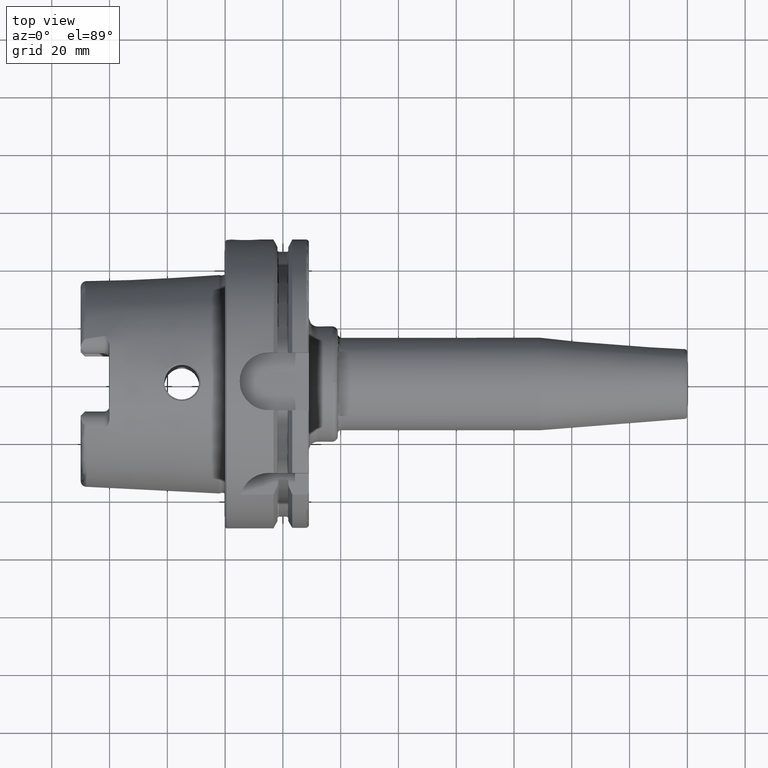
[diagram: clean part render]
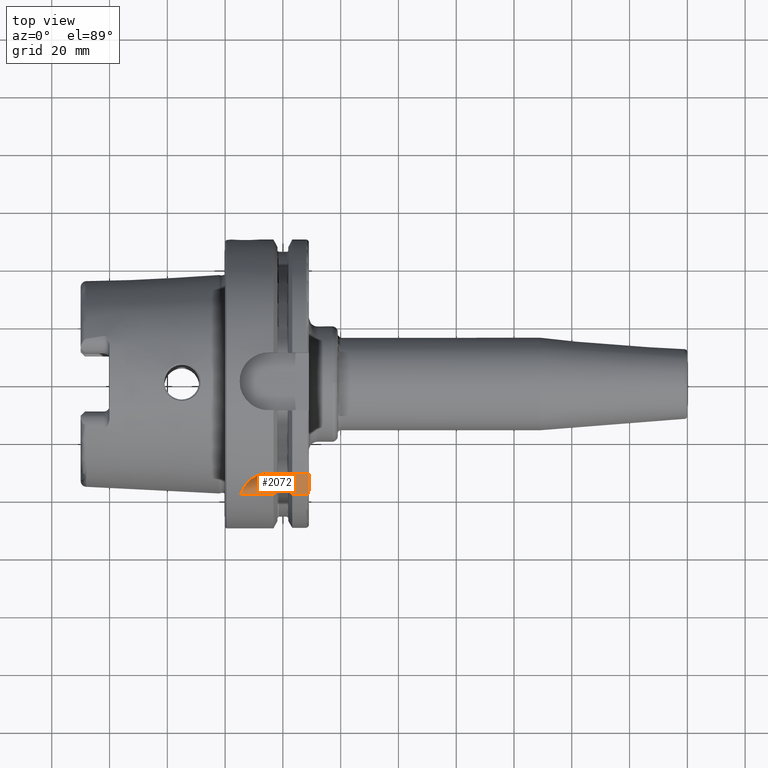
[diagram: same view with one face highlighted and labeled with its STEP entity id]
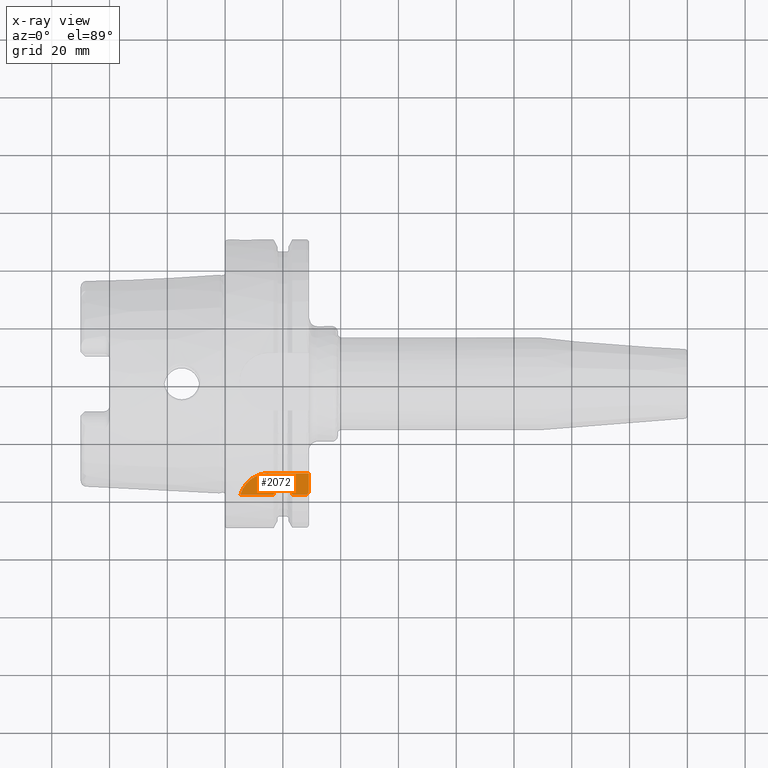
[diagram: x-ray of the same camera — body ghosted, the highlighted face saturated]
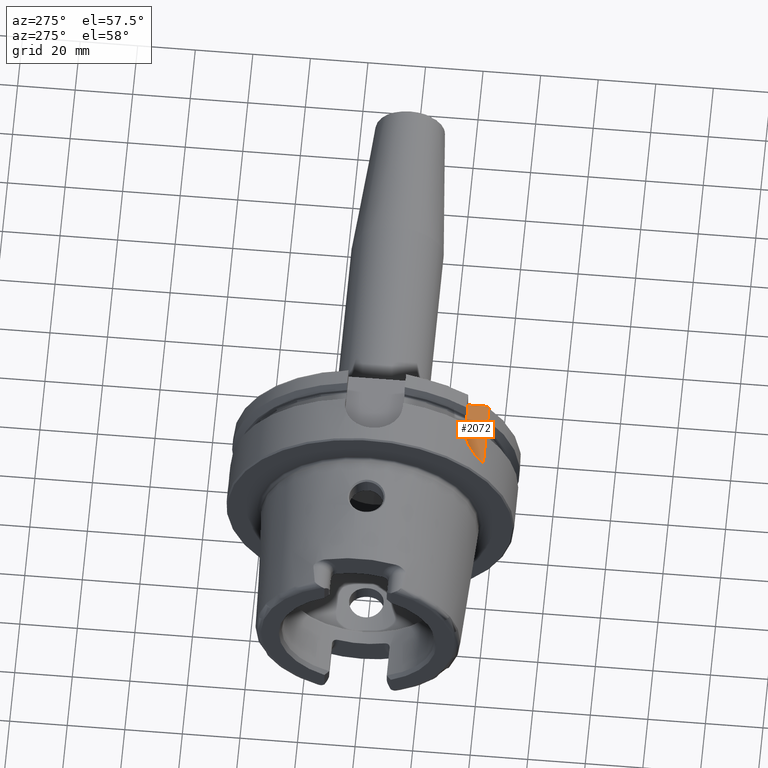
[diagram: same view with one face highlighted and labeled with its STEP entity id]
A machine part, top view. The second image highlights one B-rep face of the part: STEP entity #2072.
The next image is the same camera in x-ray: the body ghosted, the highlighted face saturated — about 0% of this face is hidden behind the body in this view.
A second angle (auxiliary view) of the same face is appended — the face is thin or edge-on in the first view.
In plain terms, the highlighted planar face has unit normal (0, 0, 1).
Its self-contained STEP definition (entity closure, byte-faithful):
#19=(
BOUNDED_CURVE()
B_SPLINE_CURVE(2,(#4060,#4061,#4062),.UNSPECIFIED.,.F.,.F.)
B_SPLINE_CURVE_WITH_KNOTS((3,3),(0.,0.343884390880417),.UNSPECIFIED.)
CURVE()
GEOMETRIC_REPRESENTATION_ITEM()
RATIONAL_B_SPLINE_CURVE((1.,1.00052016257104,1.))
REPRESENTATION_ITEM('')
);
#20=(
BOUNDED_CURVE()
B_SPLINE_CURVE(2,(#4092,#4093,#4094),.UNSPECIFIED.,.F.,.F.)
B_SPLINE_CURVE_WITH_KNOTS((3,3),(0.,0.343884390880419),.UNSPECIFIED.)
CURVE()
GEOMETRIC_REPRESENTATION_ITEM()
RATIONAL_B_SPLINE_CURVE((1.,1.00052016257005,1.))
REPRESENTATION_ITEM('')
);
#62=B_SPLINE_CURVE_WITH_KNOTS('',3,(#4066,#4067,#4068,#4069,#4070,#4071,
#4072,#4073,#4074,#4075),.UNSPECIFIED.,.F.,.F.,(4,2,2,2,4),(-0.175716275951496,
-0.15902214964786,-0.139262857016594,-0.115342898112829,-0.0876407705892815),
 .UNSPECIFIED.);
#63=B_SPLINE_CURVE_WITH_KNOTS('',3,(#4079,#4080,#4081,#4082,#4083,#4084,
#4085,#4086,#4087,#4088),.UNSPECIFIED.,.F.,.F.,(4,2,2,2,4),(0.0876407705892814,
0.115342898112828,0.139262857016592,0.15902214964786,0.175716275951495),
 .UNSPECIFIED.);
#64=B_SPLINE_CURVE_WITH_KNOTS('',3,(#4097,#4098,#4099,#4100,#4101,#4102,
#4103,#4104,#4105,#4106),.UNSPECIFIED.,.F.,.F.,(4,2,2,2,4),(-0.170825962094808,
-0.118543630596578,-0.0729156509442915,-0.0340271521483428,0.),
 .UNSPECIFIED.);
#114=PLANE('',#2288);
#258=FACE_OUTER_BOUND('',#390,.T.);
#390=EDGE_LOOP('',(#1609,#1610,#1611,#1612,#1613,#1614,#1615,#1616,#1617,
#1618,#1619,#1620,#1621));
#478=LINE('',#3126,#586);
#520=LINE('',#4007,#628);
#525=LINE('',#4058,#633);
#526=LINE('',#4064,#634);
#527=LINE('',#4077,#635);
#528=LINE('',#4090,#636);
#529=LINE('',#4096,#637);
#586=VECTOR('',#2483,10.);
#628=VECTOR('',#2721,10.);
#633=VECTOR('',#2728,10.);
#634=VECTOR('',#2729,10.);
#635=VECTOR('',#2730,10.);
#636=VECTOR('',#2731,10.);
#637=VECTOR('',#2732,10.);
#750=CIRCLE('',#2286,10.);
#838=VERTEX_POINT('',#3124);
#839=VERTEX_POINT('',#3125);
#935=VERTEX_POINT('',#3987);
#937=VERTEX_POINT('',#4001);
#947=VERTEX_POINT('',#4057);
#948=VERTEX_POINT('',#4059);
#949=VERTEX_POINT('',#4063);
#950=VERTEX_POINT('',#4065);
#951=VERTEX_POINT('',#4076);
#952=VERTEX_POINT('',#4078);
#953=VERTEX_POINT('',#4089);
#954=VERTEX_POINT('',#4091);
#955=VERTEX_POINT('',#4095);
#1053=EDGE_CURVE('',#838,#839,#478,.T.);
#1184=EDGE_CURVE('',#937,#935,#750,.T.);
#1187=EDGE_CURVE('',#838,#937,#520,.T.);
#1197=EDGE_CURVE('',#947,#935,#525,.T.);
#1198=EDGE_CURVE('',#948,#947,#19,.T.);
#1199=EDGE_CURVE('',#949,#948,#526,.T.);
#1200=EDGE_CURVE('',#950,#949,#62,.T.);
#1201=EDGE_CURVE('',#951,#950,#527,.T.);
#1202=EDGE_CURVE('',#952,#951,#63,.T.);
#1203=EDGE_CURVE('',#953,#952,#528,.T.);
#1204=EDGE_CURVE('',#954,#953,#20,.T.);
#1205=EDGE_CURVE('',#955,#954,#529,.T.);
#1206=EDGE_CURVE('',#839,#955,#64,.T.);
#1609=ORIENTED_EDGE('',*,*,#1197,.F.);
#1610=ORIENTED_EDGE('',*,*,#1198,.F.);
#1611=ORIENTED_EDGE('',*,*,#1199,.F.);
#1612=ORIENTED_EDGE('',*,*,#1200,.F.);
#1613=ORIENTED_EDGE('',*,*,#1201,.F.);
#1614=ORIENTED_EDGE('',*,*,#1202,.F.);
#1615=ORIENTED_EDGE('',*,*,#1203,.F.);
#1616=ORIENTED_EDGE('',*,*,#1204,.F.);
#1617=ORIENTED_EDGE('',*,*,#1205,.F.);
#1618=ORIENTED_EDGE('',*,*,#1206,.F.);
#1619=ORIENTED_EDGE('',*,*,#1053,.F.);
#1620=ORIENTED_EDGE('',*,*,#1187,.T.);
#1621=ORIENTED_EDGE('',*,*,#1184,.T.);
#2072=ADVANCED_FACE('',(#258),#114,.T.);
#2286=AXIS2_PLACEMENT_3D('',#4002,#2715,#2716);
#2288=AXIS2_PLACEMENT_3D('',#4056,#2726,#2727);
#2483=DIRECTION('',(0.,-1.,0.));
#2715=DIRECTION('center_axis',(0.,0.,1.));
#2716=DIRECTION('ref_axis',(0.,1.,0.));
#2721=DIRECTION('',(-1.,3.17206578464331E-16,0.));
#2726=DIRECTION('center_axis',(0.,0.,1.));
#2727=DIRECTION('ref_axis',(1.,0.,0.));
#2728=DIRECTION('',(-1.,0.,0.));
#2729=DIRECTION('',(0.,-1.,0.));
#2730=DIRECTION('',(-1.,0.,0.));
#2731=DIRECTION('',(0.,1.,0.));
#2732=DIRECTION('',(-1.,0.,0.));
#3124=CARTESIAN_POINT('',(29.,-31.5,31.5));
#3125=CARTESIAN_POINT('',(29.,-37.5333185316726,31.5));
#3126=CARTESIAN_POINT('',(29.,-18.25,31.5));
#3987=CARTESIAN_POINT('',(5.36310214079494,-38.8297566307078,31.5));
#4001=CARTESIAN_POINT('',(15.,-31.5,31.5));
#4002=CARTESIAN_POINT('Origin',(15.,-41.5,31.5));
#4007=CARTESIAN_POINT('',(29.,-31.5,31.5));
#4056=CARTESIAN_POINT('Origin',(17.,-36.5,31.5));
#4057=CARTESIAN_POINT('',(16.7379709790786,-38.8297566307078,31.5));
#4058=CARTESIAN_POINT('',(8.61898548953931,-38.8297566307078,31.5));
#4059=CARTESIAN_POINT('',(18.125,-35.6830642593065,31.5));
#4060=CARTESIAN_POINT('Ctrl Pts',(18.125,-35.6830642593066,31.5));
#4061=CARTESIAN_POINT('Ctrl Pts',(17.4607727557241,-37.2176818849689,31.5));
#4062=CARTESIAN_POINT('Ctrl Pts',(16.7379709790786,-38.8297566307079,31.5));
#4063=CARTESIAN_POINT('',(18.125,-34.2052627529741,31.5));
#4064=CARTESIAN_POINT('',(18.125,5.,31.5));
#4065=CARTESIAN_POINT('',(18.625,-33.5223805837235,31.5));
#4066=CARTESIAN_POINT('Ctrl Pts',(18.625,-33.5223805837235,31.5));
#4067=CARTESIAN_POINT('Ctrl Pts',(18.5693529123212,-33.5223805837235,31.5));
#4068=CARTESIAN_POINT('Ctrl Pts',(18.5045806209474,-33.538617945543,31.5));
#4069=CARTESIAN_POINT('Ctrl Pts',(18.3957531993943,-33.5926698815421,31.5));
#4070=CARTESIAN_POINT('Ctrl Pts',(18.3354671583148,-33.6437821851056,31.5));
#4071=CARTESIAN_POINT('Ctrl Pts',(18.2428076522704,-33.7560891280603,31.5));
#4072=CARTESIAN_POINT('Ctrl Pts',(18.1981986617216,-33.8407334953009,31.5));
#4073=CARTESIAN_POINT('Ctrl Pts',(18.1422893312478,-34.003470946295,31.5));
#4074=CARTESIAN_POINT('Ctrl Pts',(18.125,-34.1129223278956,31.5));
#4075=CARTESIAN_POINT('Ctrl Pts',(18.125,-34.2052627529741,31.5));
#4076=CARTESIAN_POINT('',(21.375,-33.5223805837235,31.5));
#4077=CARTESIAN_POINT('',(20.,-33.5223805837235,31.5));
#4078=CARTESIAN_POINT('',(21.875,-34.2052627529741,31.5));
#4079=CARTESIAN_POINT('Ctrl Pts',(21.875,-34.2052627529741,31.5));
#4080=CARTESIAN_POINT('Ctrl Pts',(21.875,-34.1129223278957,31.5));
#4081=CARTESIAN_POINT('Ctrl Pts',(21.8577106687523,-34.003470946295,31.5));
#4082=CARTESIAN_POINT('Ctrl Pts',(21.8018013382784,-33.8407334953009,31.5));
#4083=CARTESIAN_POINT('Ctrl Pts',(21.7571923477296,-33.7560891280604,31.5));
#4084=CARTESIAN_POINT('Ctrl Pts',(21.6645328416852,-33.6437821851056,31.5));
#4085=CARTESIAN_POINT('Ctrl Pts',(21.6042468006057,-33.5926698815421,31.5));
#4086=CARTESIAN_POINT('Ctrl Pts',(21.4954193790526,-33.538617945543,31.5));
#4087=CARTESIAN_POINT('Ctrl Pts',(21.4306470876788,-33.5223805837235,31.5));
#4088=CARTESIAN_POINT('Ctrl Pts',(21.375,-33.5223805837235,31.5));
#4089=CARTESIAN_POINT('',(21.875,-35.6830642593065,31.5));
#4090=CARTESIAN_POINT('',(21.875,5.54879763209582,31.5));
#4091=CARTESIAN_POINT('',(23.2620290209214,-38.8297566307078,31.5));
#4092=CARTESIAN_POINT('Ctrl Pts',(23.2620290209214,-38.8297566307078,31.5));
#4093=CARTESIAN_POINT('Ctrl Pts',(22.5392272442767,-37.2176818849707,31.5));
#4094=CARTESIAN_POINT('Ctrl Pts',(21.875,-35.6830642593065,31.5));
#4095=CARTESIAN_POINT('',(28.,-38.8297566307078,31.5));
#4096=CARTESIAN_POINT('',(25.6310145104607,-38.8297566307078,31.5));
#4097=CARTESIAN_POINT('Ctrl Pts',(29.,-37.5333185316726,31.5));
#4098=CARTESIAN_POINT('Ctrl Pts',(29.,-37.7075929700001,31.5));
#4099=CARTESIAN_POINT('Ctrl Pts',(28.9664820083304,-37.9140187901503,31.5));
#4100=CARTESIAN_POINT('Ctrl Pts',(28.8572425149189,-38.2215616508799,31.5));
#4101=CARTESIAN_POINT('Ctrl Pts',(28.7693181429129,-38.3814988424326,31.5));
#4102=CARTESIAN_POINT('Ctrl Pts',(28.5860354601279,-38.5954486383736,31.5));
#4103=CARTESIAN_POINT('Ctrl Pts',(28.4650491410143,-38.6932205975694,31.5));
#4104=CARTESIAN_POINT('Ctrl Pts',(28.2458099245109,-38.7981421072727,31.5));
#4105=CARTESIAN_POINT('Ctrl Pts',(28.1134238404945,-38.8297566307078,31.5));
#4106=CARTESIAN_POINT('Ctrl Pts',(28.,-38.8297566307078,31.5));